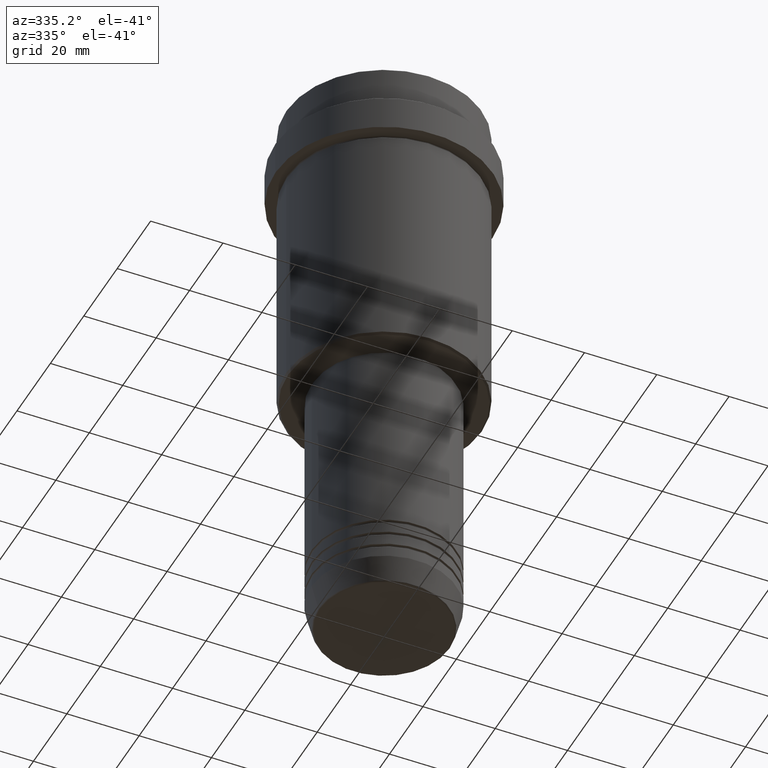
[diagram: clean part render]
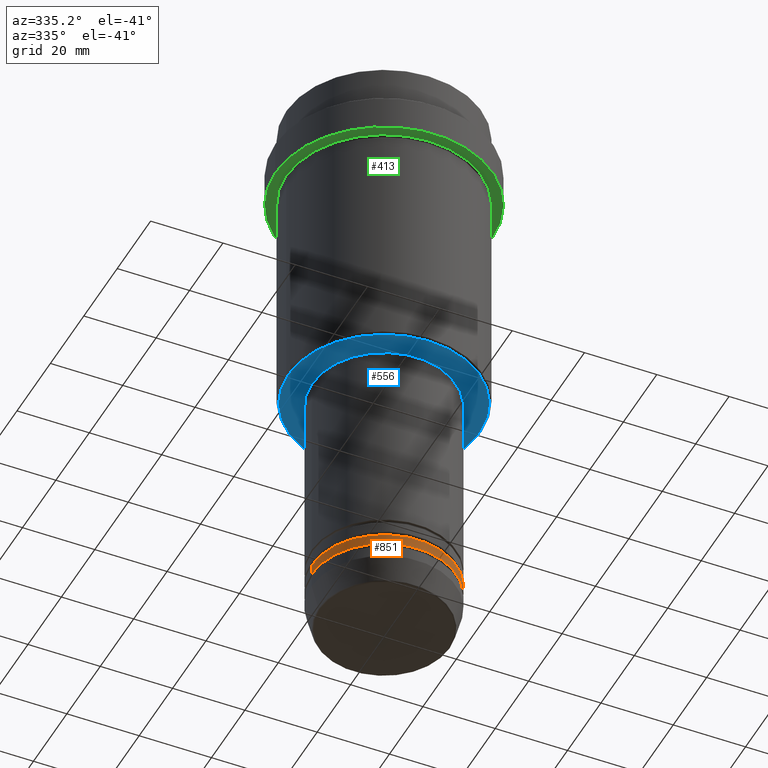
[diagram: same view with three faces highlighted in distinct colors, each labeled with its STEP entity id]
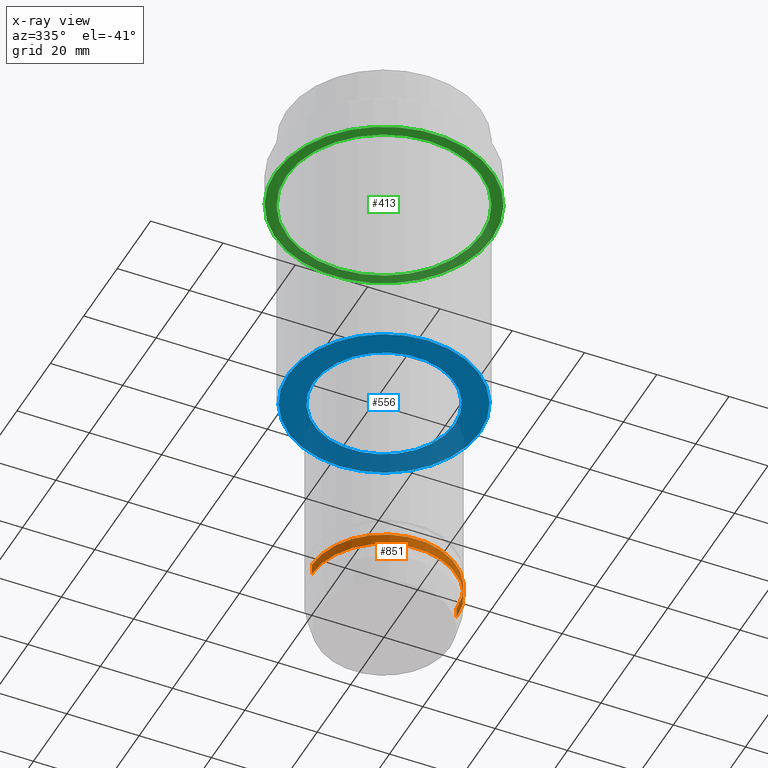
[diagram: x-ray of the same camera — body ghosted, the three highlighted faces saturated]
A machine part, auxiliary view with three faces highlighted in distinct colors.
The next image is the same camera in x-ray (body ghosted, the three faces saturated) — at least one of them is partly hidden behind the body in this view.
Their STEP definitions:

[orange] entity #851 — the highlighted cylindrical surface (partial cylindrical patch) has radius 20 mm, axis along (-0, -0, 1).
#64 = CARTESIAN_POINT ( 'NONE',  ( -20.00000000000000000, 2.449293598294706513E-15, -151.9999999999999147 ) ) ;
#128 = AXIS2_PLACEMENT_3D ( 'NONE', #322, #339, #989 ) ;
#158 = CARTESIAN_POINT ( 'NONE',  ( -20.00000000000000000, 2.449293598294706513E-15, 0.000000000000000000 ) ) ;
#159 = EDGE_CURVE ( 'NONE', #802, #723, #701, .T. ) ;
#170 = EDGE_CURVE ( 'NONE', #723, #1234, #1112, .T. ) ;
#198 = CARTESIAN_POINT ( 'NONE',  ( 0.000000000000000000, 0.000000000000000000, -148.9999999999999147 ) ) ;
#322 = CARTESIAN_POINT ( 'NONE',  ( 0.000000000000000000, 0.000000000000000000, 0.000000000000000000 ) ) ;
#339 = DIRECTION ( 'NONE',  ( -0.000000000000000000, -0.000000000000000000, 1.000000000000000000 ) ) ;
#347 = DIRECTION ( 'NONE',  ( 1.000000000000000000, 0.000000000000000000, 0.000000000000000000 ) ) ;
#348 = VERTEX_POINT ( 'NONE', #1058 ) ;
#399 = CIRCLE ( 'NONE', #1128, 20.00000000000000000 ) ;
#414 = CARTESIAN_POINT ( 'NONE',  ( 20.00000000000000000, 0.000000000000000000, -148.9999999999999147 ) ) ;
#438 = ORIENTED_EDGE ( 'NONE', *, *, #1123, .F. ) ;
#701 = CIRCLE ( 'NONE', #1336, 20.00000000000000000 ) ;
#712 = EDGE_CURVE ( 'NONE', #802, #348, #824, .T. ) ;
#723 = VERTEX_POINT ( 'NONE', #725 ) ;
#725 = CARTESIAN_POINT ( 'NONE',  ( 20.00000000000000000, 0.000000000000000000, -151.9999999999999147 ) ) ;
#755 = ORIENTED_EDGE ( 'NONE', *, *, #712, .F. ) ;
#768 = CYLINDRICAL_SURFACE ( 'NONE', #128, 20.00000000000000000 ) ;
#795 = CARTESIAN_POINT ( 'NONE',  ( 0.000000000000000000, 0.000000000000000000, -151.9999999999999147 ) ) ;
#802 = VERTEX_POINT ( 'NONE', #64 ) ;
#806 = CARTESIAN_POINT ( 'NONE',  ( 20.00000000000000000, 0.000000000000000000, 0.000000000000000000 ) ) ;
#820 = VECTOR ( 'NONE', #829, 1000.000000000000000 ) ;
#824 = LINE ( 'NONE', #158, #820 ) ;
#829 = DIRECTION ( 'NONE',  ( -0.000000000000000000, -0.000000000000000000, 1.000000000000000000 ) ) ;
#834 = DIRECTION ( 'NONE',  ( -0.000000000000000000, -0.000000000000000000, 1.000000000000000000 ) ) ;
#851 = ADVANCED_FACE ( 'NONE', ( #1303 ), #768, .T. ) ;
#921 = DIRECTION ( 'NONE',  ( -0.000000000000000000, -0.000000000000000000, 1.000000000000000000 ) ) ;
#932 = EDGE_LOOP ( 'NONE', ( #755, #1161, #1169, #438 ) ) ;
#989 = DIRECTION ( 'NONE',  ( 1.000000000000000000, 0.000000000000000000, 0.000000000000000000 ) ) ;
#1058 = CARTESIAN_POINT ( 'NONE',  ( -20.00000000000000000, 2.449293598294706513E-15, -148.9999999999999147 ) ) ;
#1112 = LINE ( 'NONE', #806, #1292 ) ;
#1123 = EDGE_CURVE ( 'NONE', #348, #1234, #399, .T. ) ;
#1128 = AXIS2_PLACEMENT_3D ( 'NONE', #198, #834, #1157 ) ;
#1157 = DIRECTION ( 'NONE',  ( 1.000000000000000000, 0.000000000000000000, 0.000000000000000000 ) ) ;
#1161 = ORIENTED_EDGE ( 'NONE', *, *, #159, .T. ) ;
#1169 = ORIENTED_EDGE ( 'NONE', *, *, #170, .T. ) ;
#1234 = VERTEX_POINT ( 'NONE', #414 ) ;
#1242 = DIRECTION ( 'NONE',  ( -0.000000000000000000, -0.000000000000000000, 1.000000000000000000 ) ) ;
#1292 = VECTOR ( 'NONE', #921, 1000.000000000000000 ) ;
#1303 = FACE_OUTER_BOUND ( 'NONE', #932, .T. ) ;
#1336 = AXIS2_PLACEMENT_3D ( 'NONE', #795, #1242, #347 ) ;

[blue] entity #556 — the highlighted planar face has unit normal (0, 0, -1).
#23 = DIRECTION ( 'NONE',  ( -1.000000000000000000, 0.000000000000000000, -0.000000000000000000 ) ) ;
#74 = CARTESIAN_POINT ( 'NONE',  ( 0.000000000000000000, 0.000000000000000000, -88.00000000000001421 ) ) ;
#139 = ORIENTED_EDGE ( 'NONE', *, *, #1314, .T. ) ;
#168 = CARTESIAN_POINT ( 'NONE',  ( -26.49999999999995381, 3.275930187719166791E-15, -88.00000000000001421 ) ) ;
#188 = EDGE_CURVE ( 'NONE', #539, #808, #1149, .T. ) ;
#259 = AXIS2_PLACEMENT_3D ( 'NONE', #1194, #320, #334 ) ;
#263 = PLANE ( 'NONE',  #767 ) ;
#282 = CIRCLE ( 'NONE', #678, 26.49999999999995381 ) ;
#288 = VERTEX_POINT ( 'NONE', #168 ) ;
#296 = CARTESIAN_POINT ( 'NONE',  ( 26.49999999999995381, 0.000000000000000000, -88.00000000000001421 ) ) ;
#320 = DIRECTION ( 'NONE',  ( 0.000000000000000000, 0.000000000000000000, -1.000000000000000000 ) ) ;
#334 = DIRECTION ( 'NONE',  ( -1.000000000000000000, 0.000000000000000000, 0.000000000000000000 ) ) ;
#406 = CARTESIAN_POINT ( 'NONE',  ( 0.000000000000000000, 0.000000000000000000, -88.00000000000001421 ) ) ;
#419 = ORIENTED_EDGE ( 'NONE', *, *, #1214, .T. ) ;
#463 = FACE_OUTER_BOUND ( 'NONE', #1117, .T. ) ;
#486 = CARTESIAN_POINT ( 'NONE',  ( 0.000000000000000000, 0.000000000000000000, -88.00000000000001421 ) ) ;
#539 = VERTEX_POINT ( 'NONE', #1109 ) ;
#556 = ADVANCED_FACE ( 'NONE', ( #463, #1237 ), #263, .T. ) ;
#598 = DIRECTION ( 'NONE',  ( -0.000000000000000000, -0.000000000000000000, 1.000000000000000000 ) ) ;
#607 = AXIS2_PLACEMENT_3D ( 'NONE', #74, #1170, #1061 ) ;
#658 = CIRCLE ( 'NONE', #259, 26.49999999999995381 ) ;
#678 = AXIS2_PLACEMENT_3D ( 'NONE', #406, #1162, #1389 ) ;
#684 = DIRECTION ( 'NONE',  ( 0.000000000000000000, 0.000000000000000000, -1.000000000000000000 ) ) ;
#706 = CARTESIAN_POINT ( 'NONE',  ( 0.000000000000000000, 27.00000000000000000, -88.00000000000001421 ) ) ;
#730 = CARTESIAN_POINT ( 'NONE',  ( -19.50000000000000000, 2.388061258337338939E-15, -88.00000000000001421 ) ) ;
#767 = AXIS2_PLACEMENT_3D ( 'NONE', #706, #684, #23 ) ;
#796 = AXIS2_PLACEMENT_3D ( 'NONE', #486, #598, #1351 ) ;
#797 = ORIENTED_EDGE ( 'NONE', *, *, #1135, .T. ) ;
#808 = VERTEX_POINT ( 'NONE', #730 ) ;
#1019 = EDGE_LOOP ( 'NONE', ( #1370, #797 ) ) ;
#1061 = DIRECTION ( 'NONE',  ( 1.000000000000000000, 0.000000000000000000, 0.000000000000000000 ) ) ;
#1109 = CARTESIAN_POINT ( 'NONE',  ( 19.50000000000000000, 0.000000000000000000, -88.00000000000001421 ) ) ;
#1117 = EDGE_LOOP ( 'NONE', ( #419, #139 ) ) ;
#1135 = EDGE_CURVE ( 'NONE', #808, #539, #1384, .T. ) ;
#1149 = CIRCLE ( 'NONE', #796, 19.50000000000000000 ) ;
#1162 = DIRECTION ( 'NONE',  ( 0.000000000000000000, 0.000000000000000000, -1.000000000000000000 ) ) ;
#1170 = DIRECTION ( 'NONE',  ( -0.000000000000000000, -0.000000000000000000, 1.000000000000000000 ) ) ;
#1194 = CARTESIAN_POINT ( 'NONE',  ( 0.000000000000000000, 0.000000000000000000, -88.00000000000001421 ) ) ;
#1214 = EDGE_CURVE ( 'NONE', #1258, #288, #282, .T. ) ;
#1237 = FACE_BOUND ( 'NONE', #1019, .T. ) ;
#1258 = VERTEX_POINT ( 'NONE', #296 ) ;
#1314 = EDGE_CURVE ( 'NONE', #288, #1258, #658, .T. ) ;
#1351 = DIRECTION ( 'NONE',  ( 1.000000000000000000, 0.000000000000000000, 0.000000000000000000 ) ) ;
#1370 = ORIENTED_EDGE ( 'NONE', *, *, #188, .T. ) ;
#1384 = CIRCLE ( 'NONE', #607, 19.50000000000000000 ) ;
#1389 = DIRECTION ( 'NONE',  ( -1.000000000000000000, 0.000000000000000000, 0.000000000000000000 ) ) ;

[green] entity #413 — the highlighted planar face has unit normal (0, 0, -1).
#5 = CARTESIAN_POINT ( 'NONE',  ( 29.99999999999999645, 0.000000000000000000, -22.00000000000000355 ) ) ;
#6 = DIRECTION ( 'NONE',  ( 0.000000000000000000, 0.000000000000000000, -1.000000000000000000 ) ) ;
#56 = AXIS2_PLACEMENT_3D ( 'NONE', #1159, #1285, #224 ) ;
#88 = CARTESIAN_POINT ( 'NONE',  ( 26.99999999999999289, 3.306546357697852944E-15, -22.00000000000000000 ) ) ;
#129 = CIRCLE ( 'NONE', #166, 26.99999999999999289 ) ;
#160 = CARTESIAN_POINT ( 'NONE',  ( 0.000000000000000000, 0.000000000000000000, -22.00000000000000000 ) ) ;
#162 = DIRECTION ( 'NONE',  ( 1.000000000000000000, 0.000000000000000000, 0.000000000000000000 ) ) ;
#166 = AXIS2_PLACEMENT_3D ( 'NONE', #510, #1417, #1392 ) ;
#224 = DIRECTION ( 'NONE',  ( 1.000000000000000000, 0.000000000000000000, 0.000000000000000000 ) ) ;
#298 = ORIENTED_EDGE ( 'NONE', *, *, #1003, .F. ) ;
#305 = EDGE_CURVE ( 'NONE', #852, #959, #1221, .T. ) ;
#307 = CIRCLE ( 'NONE', #56, 29.99999999999999645 ) ;
#407 = EDGE_LOOP ( 'NONE', ( #298, #554 ) ) ;
#413 = ADVANCED_FACE ( 'NONE', ( #985, #1079 ), #1186, .T. ) ;
#415 = ORIENTED_EDGE ( 'NONE', *, *, #305, .T. ) ;
#510 = CARTESIAN_POINT ( 'NONE',  ( 0.000000000000000000, 0.000000000000000000, -22.00000000000000000 ) ) ;
#554 = ORIENTED_EDGE ( 'NONE', *, *, #819, .F. ) ;
#669 = DIRECTION ( 'NONE',  ( -0.000000000000000000, -0.000000000000000000, 1.000000000000000000 ) ) ;
#752 = CARTESIAN_POINT ( 'NONE',  ( 0.000000000000000000, 29.99999999999999645, -22.00000000000000000 ) ) ;
#759 = ORIENTED_EDGE ( 'NONE', *, *, #1394, .T. ) ;
#819 = EDGE_CURVE ( 'NONE', #1049, #912, #307, .T. ) ;
#822 = DIRECTION ( 'NONE',  ( -0.000000000000000000, -0.000000000000000000, 1.000000000000000000 ) ) ;
#852 = VERTEX_POINT ( 'NONE', #88 ) ;
#912 = VERTEX_POINT ( 'NONE', #5 ) ;
#913 = CARTESIAN_POINT ( 'NONE',  ( 0.000000000000000000, 0.000000000000000000, -22.00000000000000355 ) ) ;
#922 = CIRCLE ( 'NONE', #948, 29.99999999999999645 ) ;
#929 = EDGE_LOOP ( 'NONE', ( #759, #415 ) ) ;
#948 = AXIS2_PLACEMENT_3D ( 'NONE', #913, #669, #162 ) ;
#950 = AXIS2_PLACEMENT_3D ( 'NONE', #160, #822, #1250 ) ;
#959 = VERTEX_POINT ( 'NONE', #1032 ) ;
#985 = FACE_BOUND ( 'NONE', #929, .T. ) ;
#1003 = EDGE_CURVE ( 'NONE', #912, #1049, #922, .T. ) ;
#1015 = AXIS2_PLACEMENT_3D ( 'NONE', #752, #6, #1202 ) ;
#1032 = CARTESIAN_POINT ( 'NONE',  ( -26.99999999999999289, 0.000000000000000000, -22.00000000000000000 ) ) ;
#1049 = VERTEX_POINT ( 'NONE', #1235 ) ;
#1079 = FACE_OUTER_BOUND ( 'NONE', #407, .T. ) ;
#1159 = CARTESIAN_POINT ( 'NONE',  ( 0.000000000000000000, 0.000000000000000000, -22.00000000000000355 ) ) ;
#1186 = PLANE ( 'NONE',  #1015 ) ;
#1202 = DIRECTION ( 'NONE',  ( -1.000000000000000000, 0.000000000000000000, -0.000000000000000000 ) ) ;
#1221 = CIRCLE ( 'NONE', #950, 26.99999999999999289 ) ;
#1235 = CARTESIAN_POINT ( 'NONE',  ( -29.99999999999999645, 3.673940397442058389E-15, -22.00000000000000355 ) ) ;
#1250 = DIRECTION ( 'NONE',  ( -1.000000000000000000, 0.000000000000000000, 0.000000000000000000 ) ) ;
#1285 = DIRECTION ( 'NONE',  ( -0.000000000000000000, -0.000000000000000000, 1.000000000000000000 ) ) ;
#1392 = DIRECTION ( 'NONE',  ( -1.000000000000000000, 0.000000000000000000, 0.000000000000000000 ) ) ;
#1394 = EDGE_CURVE ( 'NONE', #959, #852, #129, .T. ) ;
#1417 = DIRECTION ( 'NONE',  ( -0.000000000000000000, -0.000000000000000000, 1.000000000000000000 ) ) ;